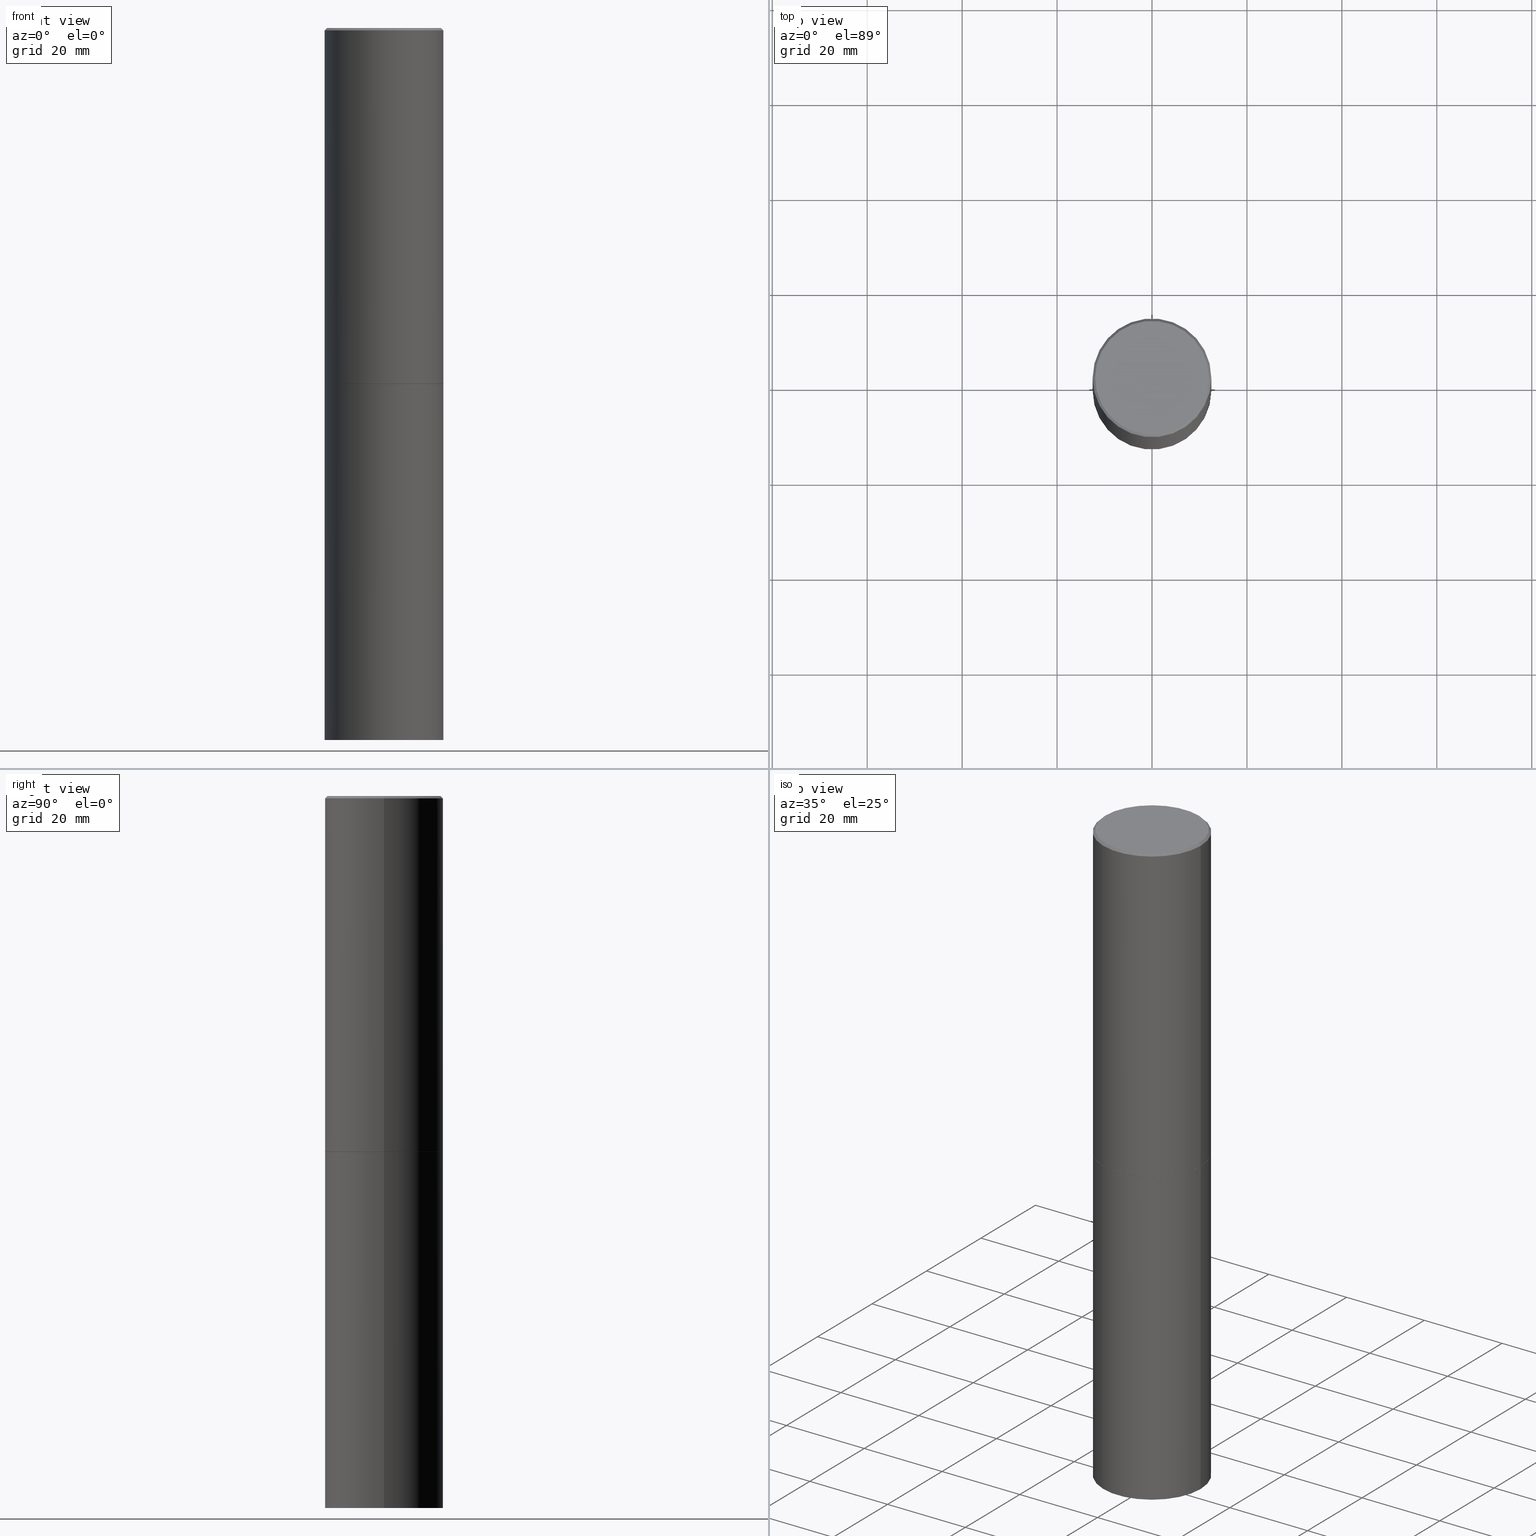
[diagram: canonical four-view strip — front | top / right | iso, engineering-drawing reading convention]
A machine part, canonical four-view strip (front | top / right | iso — engineering-drawing reading convention). The complete STEP part file that produces these views, byte-faithful:
ISO-10303-21;
HEADER;
FILE_DESCRIPTION (( 'STEP AP203' ),
    '1' );
FILE_NAME ('43195.STEP',
    '2024-02-28T04:15:30',
    ( '' ),
    ( '' ),
    'SwSTEP 2.0',
    'SolidWorks 2023',
    '' );
FILE_SCHEMA (( 'CONFIG_CONTROL_DESIGN' ));
ENDSEC;

DATA;
#1 = DIRECTION ( 'NONE',  ( 1.000000000000000000, -6.982962677686265922E-15, 4.876176775795935793E-29 ) ) ;
#2 = EDGE_CURVE ( 'NONE', #240, #190, #106, .T. ) ;
#3 = CARTESIAN_POINT ( 'NONE',  ( 7.218290275216666916E-29, -1.030580546786331359E-14, -2.951700000000000212 ) ) ;
#4 = DIRECTION ( 'NONE',  ( 1.000000000000000000, -6.982962677686264344E-15, 0.000000000000000000 ) ) ;
#5 = PRODUCT_DEFINITION_SHAPE ( 'NONE', 'NONE',  #209 ) ;
#6 = CARTESIAN_POINT ( 'NONE',  ( 7.218290275216666916E-29, -1.030580546786331359E-14, -2.951700000000000212 ) ) ;
#7 = CARTESIAN_POINT ( 'NONE',  ( -0.4911499999999999755, -6.814167848168202303E-15, -2.952700000000000546 ) ) ;
#8 =( LENGTH_UNIT ( ) NAMED_UNIT ( * ) SI_UNIT ( $, .METRE. ) );
#9 = AXIS2_PLACEMENT_3D ( 'NONE', #168, #60, #142 ) ;
#10 = PERSON_AND_ORGANIZATION ( #287, #181 ) ;
#11 = PERSON_AND_ORGANIZATION_ROLE ( 'design_owner' ) ;
#12 = ADVANCED_FACE ( 'NONE', ( #296 ), #103, .F. ) ;
#13 = ORIENTED_EDGE ( 'NONE', *, *, #343, .T. ) ;
#14 = APPLICATION_PROTOCOL_DEFINITION ( 'international standard', 'config_control_design', 1994, #152 ) ;
#15 = ORIENTED_EDGE ( 'NONE', *, *, #93, .T. ) ;
#16 = AXIS2_PLACEMENT_3D ( 'NONE', #224, #110, #1 ) ;
#17 = ORIENTED_EDGE ( 'NONE', *, *, #2, .T. ) ;
#18 = APPROVAL_ROLE ( '' ) ;
#19 = ORIENTED_EDGE ( 'NONE', *, *, #80, .F. ) ;
#20 = ORIENTED_EDGE ( 'NONE', *, *, #246, .T. ) ;
#21 = AXIS2_PLACEMENT_3D ( 'NONE', #317, #120, #4 ) ;
#22 = DIRECTION ( 'NONE',  ( 1.000000000000000000, -6.982962677686264344E-15, 0.000000000000000000 ) ) ;
#23 = DIRECTION ( 'NONE',  ( 1.000000000000000000, -6.982962677686265922E-15, 0.000000000000000000 ) ) ;
#24 = ADVANCED_FACE ( 'NONE', ( #363 ), #283, .T. ) ;
#25 = DIRECTION ( 'NONE',  ( 2.445468806185136597E-29, -3.491481338843145583E-15, -1.000000000000000000 ) ) ;
#26 = AXIS2_PLACEMENT_3D ( 'NONE', #3, #221, #81 ) ;
#27 = FACE_OUTER_BOUND ( 'NONE', #212, .T. ) ;
#28 = EDGE_CURVE ( 'NONE', #190, #135, #127, .T. ) ;
#29 = CARTESIAN_POINT ( 'NONE',  ( -0.4911499999999999755, -6.819466302516424705E-15, -2.952700000000000546 ) ) ;
#30 = ORIENTED_EDGE ( 'NONE', *, *, #206, .T. ) ;
#31 = CARTESIAN_POINT ( 'NONE',  ( 3.436665081823367957E-15, 0.4921499999999896513, -2.952700000000001435 ) ) ;
#32 = VECTOR ( 'NONE', #118, 39.37007874015748143 ) ;
#33 = CARTESIAN_POINT ( 'NONE',  ( 0.4921499999999999764, -3.436665081823295777E-15, 2.399810400207969603E-29 ) ) ;
#34 = CARTESIAN_POINT ( 'NONE',  ( 4.890937612370299433E-31, -6.982962677686328587E-17, -0.02000000000000010797 ) ) ;
#35 = CARTESIAN_POINT ( 'NONE',  ( 0.000000000000000000, 0.000000000000000000, 0.000000000000000000 ) ) ;
#36 = DIMENSIONAL_EXPONENTS ( 1.000000000000000000, 0.000000000000000000, 0.000000000000000000, 0.000000000000000000, 0.000000000000000000, 0.000000000000000000, 0.000000000000000000 ) ;
#37 = CLOSED_SHELL ( 'NONE', ( #365, #354, #321, #109, #200, #277, #64, #12 ) ) ;
#38 = VECTOR ( 'NONE', #94, 39.37007874015748143 ) ;
#39 = DIRECTION ( 'NONE',  ( 2.438088387897960049E-29, -3.491481338843145188E-15, -1.000000000000000000 ) ) ;
#40 = EDGE_CURVE ( 'NONE', #160, #46, #337, .T. ) ;
#41 = PERSON_AND_ORGANIZATION ( #287, #181 ) ;
#42 = ORIENTED_EDGE ( 'NONE', *, *, #170, .T. ) ;
#43 = APPROVAL_ROLE ( '' ) ;
#44 = ORIENTED_EDGE ( 'NONE', *, *, #80, .T. ) ;
#45 = APPROVAL_STATUS ( 'not_yet_approved' ) ;
#46 = VERTEX_POINT ( 'NONE', #193 ) ;
#47 = CONICAL_SURFACE ( 'NONE', #98, 0.4911499999999999755, 0.7853981633972775267 ) ;
#48 = CC_DESIGN_APPROVAL ( #184, ( #361 ) ) ;
#49 = APPLICATION_PROTOCOL_DEFINITION ( 'international standard', 'config_control_design', 1994, #226 ) ;
#50 = ORIENTED_EDGE ( 'NONE', *, *, #28, .T. ) ;
#51 = ORIENTED_EDGE ( 'NONE', *, *, #327, .T. ) ;
#52 = DIRECTION ( 'NONE',  ( -2.445468806185136597E-29, 3.491481338843145583E-15, 1.000000000000000000 ) ) ;
#53 = AXIS2_PLACEMENT_3D ( 'NONE', #6, #96, #179 ) ;
#54 = CARTESIAN_POINT ( 'NONE',  ( 7.220735744022852519E-29, -1.030929694920215502E-14, -2.952700000000000102 ) ) ;
#55 = DIRECTION ( 'NONE',  ( -1.000000000000000000, 6.982962677686265922E-15, 0.000000000000000000 ) ) ;
#56 = CARTESIAN_POINT ( 'NONE',  ( 7.220735744022853640E-29, -1.030929694920215659E-14, -2.952700000000000546 ) ) ;
#57 = CC_DESIGN_PERSON_AND_ORGANIZATION_ASSIGNMENT ( #350, #215, ( #361 ) ) ;
#58 = MANIFOLD_SOLID_BREP ( 'Body-Move/Copy2[2]', #37 ) ;
#59 = AXIS2_PLACEMENT_3D ( 'NONE', #56, #171, #196 ) ;
#60 = DIRECTION ( 'NONE',  ( -2.445468806185136597E-29, 3.491481338843145583E-15, 1.000000000000000000 ) ) ;
#61 = FACE_OUTER_BOUND ( 'NONE', #245, .T. ) ;
#62 = CARTESIAN_POINT ( 'NONE',  ( 1.444171603492632270E-28, -2.061894304653819197E-14, -5.905499999999999972 ) ) ;
#63 = CIRCLE ( 'NONE', #177, 0.4911499999999999755 ) ;
#64 = ADVANCED_FACE ( 'NONE', ( #227 ), #284, .F. ) ;
#65 = CYLINDRICAL_SURFACE ( 'NONE', #300, 0.4921499999999999764 ) ;
#66 = ADVANCED_BREP_SHAPE_REPRESENTATION ( '43195', ( #302, #58, #100 ), #88 ) ;
#67 = CARTESIAN_POINT ( 'NONE',  ( 0.4911499999999999755, -1.373897906834776478E-14, -2.952700000000000546 ) ) ;
#68 = EDGE_CURVE ( 'NONE', #240, #157, #77, .T. ) ;
#69 = CC_DESIGN_APPROVAL ( #290, ( #293 ) ) ;
#70 = VERTEX_POINT ( 'NONE', #306 ) ;
#71 = PERSON_AND_ORGANIZATION ( #287, #181 ) ;
#72 = CARTESIAN_POINT ( 'NONE',  ( -0.4921499999999996988, 3.366835455046430506E-15, -0.02000000000000010797 ) ) ;
#73 = PERSON_AND_ORGANIZATION ( #287, #181 ) ;
#74 = CARTESIAN_POINT ( 'NONE',  ( 3.297005828269567997E-15, 0.4721499999999996255, -1.644234401644689488E-15 ) ) ;
#75 = DIRECTION ( 'NONE',  ( 1.000000000000000000, 0.000000000000000000, 0.000000000000000000 ) ) ;
#76 = ORIENTED_EDGE ( 'NONE', *, *, #163, .T. ) ;
#77 = CIRCLE ( 'NONE', #9, 0.4721499999999996255 ) ;
#78 = ORIENTED_EDGE ( 'NONE', *, *, #68, .F. ) ;
#79 = DIRECTION ( 'NONE',  ( -1.000000000000000000, 6.982962677686265922E-15, -4.876176775795935793E-29 ) ) ;
#80 = EDGE_CURVE ( 'NONE', #362, #295, #63, .T. ) ;
#81 = DIRECTION ( 'NONE',  ( 1.000000000000000000, -6.982962677686265922E-15, 0.000000000000000000 ) ) ;
#82 = CIRCLE ( 'NONE', #116, 0.4921499999999996988 ) ;
#83 = CYLINDRICAL_SURFACE ( 'NONE', #218, 0.4921499999999998098 ) ;
#84 = CC_DESIGN_PERSON_AND_ORGANIZATION_ASSIGNMENT ( #161, #11, ( #89 ) ) ;
#85 = LINE ( 'NONE', #167, #188 ) ;
#86 = DIRECTION ( 'NONE',  ( 1.000000000000000000, -6.982962677686265922E-15, 0.000000000000000000 ) ) ;
#87 = CONICAL_SURFACE ( 'NONE', #198, 0.4921499999999996988, 0.7853981633974469467 ) ;
#88 =( GEOMETRIC_REPRESENTATION_CONTEXT ( 3 ) GLOBAL_UNCERTAINTY_ASSIGNED_CONTEXT ( ( #260 ) ) GLOBAL_UNIT_ASSIGNED_CONTEXT ( ( #272, #131, #247 ) ) REPRESENTATION_CONTEXT ( 'NONE', 'WORKASPACE' ) );
#89 = PRODUCT ( '43195', '43195', '', ( #128 ) ) ;
#90 = LINE ( 'NONE', #67, #324 ) ;
#91 = ORIENTED_EDGE ( 'NONE', *, *, #68, .T. ) ;
#92 = CARTESIAN_POINT ( 'NONE',  ( 0.4921499999999999764, -1.374247054968660936E-14, -2.951700000000000212 ) ) ;
#93 = EDGE_CURVE ( 'NONE', #157, #135, #85, .T. ) ;
#94 = DIRECTION ( 'NONE',  ( -2.445468806185136877E-29, 3.491481338843145188E-15, 1.000000000000000000 ) ) ;
#95 = APPROVAL_PERSON_ORGANIZATION ( #71, #184, #18 ) ;
#96 = DIRECTION ( 'NONE',  ( -2.445468806185136597E-29, 3.491481338843145583E-15, 1.000000000000000000 ) ) ;
#97 = CC_DESIGN_PERSON_AND_ORGANIZATION_ASSIGNMENT ( #41, #355, ( #293 ) ) ;
#98 = AXIS2_PLACEMENT_3D ( 'NONE', #234, #347, #320 ) ;
#99 = CALENDAR_DATE ( 2024, 27, 2 ) ;
#100 = AXIS2_PLACEMENT_3D ( 'NONE', #269, #219, #75 ) ;
#101 = ORIENTED_EDGE ( 'NONE', *, *, #343, .F. ) ;
#102 = CALENDAR_DATE ( 2024, 27, 2 ) ;
#103 = PLANE ( 'NONE',  #249 ) ;
#104 = EDGE_CURVE ( 'NONE', #46, #160, #134, .T. ) ;
#105 = DATE_AND_TIME ( #191, #313 ) ;
#106 = LINE ( 'NONE', #72, #149 ) ;
#107 = AXIS2_PLACEMENT_3D ( 'NONE', #143, #336, #86 ) ;
#108 = ORIENTED_EDGE ( 'NONE', *, *, #93, .F. ) ;
#109 = ADVANCED_FACE ( 'NONE', ( #27 ), #87, .T. ) ;
#110 = DIRECTION ( 'NONE',  ( -2.445468806185136597E-29, 3.491481338843145583E-15, 1.000000000000000000 ) ) ;
#111 = CARTESIAN_POINT ( 'NONE',  ( 7.220735744022853640E-29, -1.030929694920215659E-14, -2.952700000000000546 ) ) ;
#112 = CIRCLE ( 'NONE', #107, 0.4921499999999999764 ) ;
#113 = DIRECTION ( 'NONE',  ( -2.445468806185136597E-29, 3.491481338843145583E-15, 1.000000000000000000 ) ) ;
#114 = LINE ( 'NONE', #29, #271 ) ;
#115 = DIRECTION ( 'NONE',  ( 0.7071067811864267805, -2.468850131080992517E-15, 0.7071067811866682540 ) ) ;
#116 = AXIS2_PLACEMENT_3D ( 'NONE', #232, #145, #288 ) ;
#117 = EDGE_LOOP ( 'NONE', ( #101, #301 ) ) ;
#118 = DIRECTION ( 'NONE',  ( -2.445468806185136877E-29, 3.491481338843145188E-15, 1.000000000000000000 ) ) ;
#119 = PRODUCT_RELATED_PRODUCT_CATEGORY ( 'detail', '', ( #89 ) ) ;
#120 = DIRECTION ( 'NONE',  ( -2.445468806185136597E-29, 3.491481338843145583E-15, 1.000000000000000000 ) ) ;
#121 = FACE_OUTER_BOUND ( 'NONE', #214, .T. ) ;
#122 = CONICAL_SURFACE ( 'NONE', #21, 0.4911499999999999755, 0.7853981633972775267 ) ;
#123 = DIRECTION ( 'NONE',  ( -1.000000000000000000, 6.982962677686265922E-15, -4.876176775795935793E-29 ) ) ;
#124 = APPROVAL_ROLE ( '' ) ;
#125 = COORDINATED_UNIVERSAL_TIME_OFFSET ( 5, 0, .BEHIND. ) ;
#126 = ORIENTED_EDGE ( 'NONE', *, *, #246, .F. ) ;
#127 = CIRCLE ( 'NONE', #276, 0.4921499999999996988 ) ;
#128 = MECHANICAL_CONTEXT ( 'NONE', #226, 'mechanical' ) ;
#129 = ORIENTED_EDGE ( 'NONE', *, *, #316, .T. ) ;
#130 = ORIENTED_EDGE ( 'NONE', *, *, #40, .T. ) ;
#131 =( NAMED_UNIT ( * ) PLANE_ANGLE_UNIT ( ) SI_UNIT ( $, .RADIAN. ) );
#132 = EDGE_LOOP ( 'NONE', ( #270, #15, #344, #183 ) ) ;
#133 = ADVANCED_FACE ( 'NONE', ( #169 ), #253, .T. ) ;
#134 = CIRCLE ( 'NONE', #230, 0.4921499999999999764 ) ;
#135 = VERTEX_POINT ( 'NONE', #364 ) ;
#136 = DIRECTION ( 'NONE',  ( -2.445468806185136877E-29, 3.491481338843145188E-15, 1.000000000000000000 ) ) ;
#137 = DIRECTION ( 'NONE',  ( -1.000000000000000000, 6.982962677686265922E-15, -4.876176775795935793E-29 ) ) ;
#138 = CARTESIAN_POINT ( 'NONE',  ( -0.4921499999999999764, -1.196718392382684217E-14, -5.905499999999999972 ) ) ;
#139 = AXIS2_PLACEMENT_3D ( 'NONE', #172, #197, #79 ) ;
#140 = CC_DESIGN_APPROVAL ( #238, ( #209 ) ) ;
#141 = EDGE_CURVE ( 'NONE', #323, #135, #228, .T. ) ;
#142 = DIRECTION ( 'NONE',  ( 1.000000000000000000, -6.982962677686265922E-15, 4.876006802227162976E-29 ) ) ;
#143 = CARTESIAN_POINT ( 'NONE',  ( 1.444171603492632270E-28, -2.061894304653819197E-14, -5.905499999999999972 ) ) ;
#144 = EDGE_CURVE ( 'NONE', #362, #70, #114, .T. ) ;
#145 = DIRECTION ( 'NONE',  ( -2.445468806185136597E-29, 3.491481338843145583E-15, 1.000000000000000000 ) ) ;
#146 = DIRECTION ( 'NONE',  ( -2.445468806185136597E-29, 3.491481338843145583E-15, 1.000000000000000000 ) ) ;
#147 = DIRECTION ( 'NONE',  ( -2.445468806185136597E-29, 3.491481338843145583E-15, 1.000000000000000000 ) ) ;
#148 = CARTESIAN_POINT ( 'NONE',  ( 0.4911499999999999755, -1.373897906834776478E-14, -2.952700000000000546 ) ) ;
#149 = VECTOR ( 'NONE', #185, 39.37007874015748143 ) ;
#150 = CC_DESIGN_SECURITY_CLASSIFICATION ( #361, ( #293 ) ) ;
#151 = DIRECTION ( 'NONE',  ( -2.445468806185136597E-29, 3.491481338843145583E-15, 1.000000000000000000 ) ) ;
#152 = APPLICATION_CONTEXT ( 'configuration controlled 3d designs of mechanical parts and assemblies' ) ;
#153 = DATE_AND_TIME ( #102, #189 ) ;
#154 = VERTEX_POINT ( 'NONE', #138 ) ;
#155 = CALENDAR_DATE ( 2024, 27, 2 ) ;
#156 = EDGE_CURVE ( 'NONE', #154, #329, #112, .T. ) ;
#157 = VERTEX_POINT ( 'NONE', #280 ) ;
#158 = APPROVAL_DATE_TIME ( #351, #184 ) ;
#159 = APPROVAL_PERSON_ORGANIZATION ( #73, #238, #43 ) ;
#160 = VERTEX_POINT ( 'NONE', #257 ) ;
#161 = PERSON_AND_ORGANIZATION ( #287, #181 ) ;
#162 = EDGE_LOOP ( 'NONE', ( #358, #202, #30, #243 ) ) ;
#163 = EDGE_CURVE ( 'NONE', #295, #362, #332, .T. ) ;
#164 = PERSON_AND_ORGANIZATION ( #287, #181 ) ;
#165 = EDGE_LOOP ( 'NONE', ( #91, #299 ) ) ;
#166 = CIRCLE ( 'NONE', #199, 0.4921499999999999764 ) ;
#167 = CARTESIAN_POINT ( 'NONE',  ( 0.4921499999999996988, -3.446223716380120377E-15, -0.02000000000000010797 ) ) ;
#168 = CARTESIAN_POINT ( 'NONE',  ( -2.087702828670439639E-46, 2.980686340760894400E-32, 8.537024980200822558E-18 ) ) ;
#169 = FACE_OUTER_BOUND ( 'NONE', #162, .T. ) ;
#170 = EDGE_CURVE ( 'NONE', #70, #323, #348, .T. ) ;
#171 = DIRECTION ( 'NONE',  ( -2.438088387897960049E-29, 3.491481338843145188E-15, 1.000000000000000000 ) ) ;
#172 = CARTESIAN_POINT ( 'NONE',  ( 3.436665081823440533E-15, 0.4921499999999793262, -5.905500000000001748 ) ) ;
#173 = CC_DESIGN_DATE_AND_TIME_ASSIGNMENT ( #328, #322, ( #361 ) ) ;
#174 = CARTESIAN_POINT ( 'NONE',  ( -0.4721499999999996255, 3.331920641657999252E-15, 8.537024980177643606E-18 ) ) ;
#175 = DESIGN_CONTEXT ( 'detailed design', #152, 'design' ) ;
#176 = CARTESIAN_POINT ( 'NONE',  ( -0.4921499999999998098, 3.496936074043331714E-15, -2.420853904668950949E-29 ) ) ;
#177 = AXIS2_PLACEMENT_3D ( 'NONE', #256, #52, #22 ) ;
#178 = DIRECTION ( 'NONE',  ( -2.445468806185136597E-29, 3.491481338843145583E-15, 1.000000000000000000 ) ) ;
#179 = DIRECTION ( 'NONE',  ( 1.000000000000000000, -6.982962677686265922E-15, 0.000000000000000000 ) ) ;
#180 = LINE ( 'NONE', #345, #292 ) ;
#181 = ORGANIZATION ( 'UNSPECIFIED', 'UNSPECIFIED', '' ) ;
#182 = APPROVAL_STATUS ( 'not_yet_approved' ) ;
#183 = ORIENTED_EDGE ( 'NONE', *, *, #2, .F. ) ;
#184 = APPROVAL ( #45, 'UNSPECIFIED' ) ;
#185 = DIRECTION ( 'NONE',  ( -0.7071067811865465735, 2.468850131082246805E-15, -0.7071067811865484609 ) ) ;
#186 = COORDINATED_UNIVERSAL_TIME_OFFSET ( 5, 0, .BEHIND. ) ;
#187 = DIRECTION ( 'NONE',  ( 2.438088387897960049E-29, -3.491481338843145188E-15, -1.000000000000000000 ) ) ;
#188 = VECTOR ( 'NONE', #309, 39.37007874015748143 ) ;
#189 = LOCAL_TIME ( 23, 15, 30.00000000000000000, #325 ) ;
#190 = VERTEX_POINT ( 'NONE', #335 ) ;
#191 = CALENDAR_DATE ( 2024, 27, 2 ) ;
#192 = ORIENTED_EDGE ( 'NONE', *, *, #28, .F. ) ;
#193 = CARTESIAN_POINT ( 'NONE',  ( -0.4921499999999999764, -1.196718392382684217E-14, -2.952700000000000102 ) ) ;
#194 = CARTESIAN_POINT ( 'NONE',  ( 0.4921499999999998098, -3.436665081823294593E-15, 2.399810400207968762E-29 ) ) ;
#195 = DIRECTION ( 'NONE',  ( -2.445468806185136597E-29, 3.491481338843145583E-15, 1.000000000000000000 ) ) ;
#196 = DIRECTION ( 'NONE',  ( 1.000000000000000000, -6.982962677686265922E-15, 4.876176775795935793E-29 ) ) ;
#197 = DIRECTION ( 'NONE',  ( 2.438088387897960049E-29, -3.491481338843145188E-15, -1.000000000000000000 ) ) ;
#198 = AXIS2_PLACEMENT_3D ( 'NONE', #279, #25, #55 ) ;
#199 = AXIS2_PLACEMENT_3D ( 'NONE', #62, #146, #291 ) ;
#200 = ADVANCED_FACE ( 'NONE', ( #338 ), #83, .T. ) ;
#201 = CYLINDRICAL_SURFACE ( 'NONE', #210, 0.4921499999999998098 ) ;
#202 = ORIENTED_EDGE ( 'NONE', *, *, #156, .T. ) ;
#203 = DIRECTION ( 'NONE',  ( 1.000000000000000000, -6.982962677686265922E-15, 4.876006802227162976E-29 ) ) ;
#204 = LINE ( 'NONE', #33, #32 ) ;
#205 = APPROVAL_PERSON_ORGANIZATION ( #164, #290, #124 ) ;
#206 = EDGE_CURVE ( 'NONE', #329, #160, #204, .T. ) ;
#207 = LINE ( 'NONE', #176, #38 ) ;
#208 = PERSON_AND_ORGANIZATION_ROLE ( 'creator' ) ;
#209 = PRODUCT_DEFINITION ( 'UNKNOWN', '', #293, #175 ) ;
#210 = AXIS2_PLACEMENT_3D ( 'NONE', #261, #147, #263 ) ;
#211 = COORDINATED_UNIVERSAL_TIME_OFFSET ( 5, 0, .BEHIND. ) ;
#212 = EDGE_LOOP ( 'NONE', ( #108, #78, #17, #50 ) ) ;
#213 = PERSON_AND_ORGANIZATION_ROLE ( 'design_supplier' ) ;
#214 = EDGE_LOOP ( 'NONE', ( #76, #304, #126, #274 ) ) ;
#215 = PERSON_AND_ORGANIZATION_ROLE ( 'classification_officer' ) ;
#216 = CC_DESIGN_PERSON_AND_ORGANIZATION_ASSIGNMENT ( #10, #208, ( #209 ) ) ;
#217 = ORIENTED_EDGE ( 'NONE', *, *, #144, .F. ) ;
#218 = AXIS2_PLACEMENT_3D ( 'NONE', #310, #366, #236 ) ;
#219 = DIRECTION ( 'NONE',  ( 0.000000000000000000, 0.000000000000000000, 1.000000000000000000 ) ) ;
#220 = EDGE_LOOP ( 'NONE', ( #13, #129, #275, #258 ) ) ;
#221 = DIRECTION ( 'NONE',  ( -2.445468806185136597E-29, 3.491481338843145583E-15, 1.000000000000000000 ) ) ;
#222 = DIRECTION ( 'NONE',  ( 1.000000000000000000, -6.982962677686265922E-15, 0.000000000000000000 ) ) ;
#223 = VECTOR ( 'NONE', #136, 39.37007874015748143 ) ;
#224 = CARTESIAN_POINT ( 'NONE',  ( 0.000000000000000000, 0.000000000000000000, 0.000000000000000000 ) ) ;
#225 = LOCAL_TIME ( 23, 15, 30.00000000000000000, #303 ) ;
#226 = APPLICATION_CONTEXT ( 'configuration controlled 3d designs of mechanical parts and assemblies' ) ;
#227 = FACE_OUTER_BOUND ( 'NONE', #331, .T. ) ;
#228 = LINE ( 'NONE', #194, #223 ) ;
#229 = DIRECTION ( 'NONE',  ( 2.445468806185136597E-29, -3.491481338843145583E-15, -1.000000000000000000 ) ) ;
#230 = AXIS2_PLACEMENT_3D ( 'NONE', #54, #312, #222 ) ;
#231 = CARTESIAN_POINT ( 'NONE',  ( -2.087702828670439639E-46, 2.980686340760894400E-32, 8.537024980200822558E-18 ) ) ;
#232 = CARTESIAN_POINT ( 'NONE',  ( 4.890937612370299433E-31, -6.982962677686328587E-17, -0.02000000000000010797 ) ) ;
#233 = ADVANCED_FACE ( 'NONE', ( #259 ), #349, .F. ) ;
#234 = CARTESIAN_POINT ( 'NONE',  ( 7.220735744022853640E-29, -1.030929694920215659E-14, -2.952700000000000546 ) ) ;
#235 = CIRCLE ( 'NONE', #241, 0.4721499999999996255 ) ;
#236 = DIRECTION ( 'NONE',  ( 1.000000000000000000, -6.982962677686265922E-15, 4.876176775795935793E-29 ) ) ;
#237 = APPROVAL_DATE_TIME ( #153, #290 ) ;
#238 = APPROVAL ( #182, 'UNSPECIFIED' ) ;
#239 = CALENDAR_DATE ( 2024, 27, 2 ) ;
#240 = VERTEX_POINT ( 'NONE', #174 ) ;
#241 = AXIS2_PLACEMENT_3D ( 'NONE', #231, #178, #203 ) ;
#242 = APPROVAL_STATUS ( 'not_yet_approved' ) ;
#243 = ORIENTED_EDGE ( 'NONE', *, *, #104, .F. ) ;
#244 = DATE_TIME_ROLE ( 'creation_date' ) ;
#245 = EDGE_LOOP ( 'NONE', ( #20, #356, #285, #273 ) ) ;
#246 = EDGE_CURVE ( 'NONE', #323, #70, #254, .T. ) ;
#247 =( NAMED_UNIT ( * ) SI_UNIT ( $, .STERADIAN. ) SOLID_ANGLE_UNIT ( ) );
#248 = EDGE_LOOP ( 'NONE', ( #359, #42, #353, #192 ) ) ;
#249 = AXIS2_PLACEMENT_3D ( 'NONE', #74, #187, #137 ) ;
#250 = ORIENTED_EDGE ( 'NONE', *, *, #170, .F. ) ;
#251 = DIRECTION ( 'NONE',  ( -0.7071067811864267805, 7.493145998869918709E-15, 0.7071067811866682540 ) ) ;
#252 = CC_DESIGN_PERSON_AND_ORGANIZATION_ASSIGNMENT ( #267, #213, ( #293 ) ) ;
#253 = CYLINDRICAL_SURFACE ( 'NONE', #16, 0.4921499999999999764 ) ;
#254 = CIRCLE ( 'NONE', #53, 0.4921499999999999764 ) ;
#255 = DIRECTION ( 'NONE',  ( 1.000000000000000000, -6.982962677686264344E-15, 0.000000000000000000 ) ) ;
#256 = CARTESIAN_POINT ( 'NONE',  ( 7.220735744022853640E-29, -1.030929694920215659E-14, -2.952700000000000546 ) ) ;
#257 = CARTESIAN_POINT ( 'NONE',  ( 0.4921499999999999764, -1.374596203102545079E-14, -2.952700000000000102 ) ) ;
#258 = ORIENTED_EDGE ( 'NONE', *, *, #206, .F. ) ;
#259 = FACE_OUTER_BOUND ( 'NONE', #334, .T. ) ;
#260 = UNCERTAINTY_MEASURE_WITH_UNIT (LENGTH_MEASURE( 1.000000000000000082E-05 ), #272, 'distance_accuracy_value', 'NONE');
#261 = CARTESIAN_POINT ( 'NONE',  ( 0.000000000000000000, 0.000000000000000000, 0.000000000000000000 ) ) ;
#262 = CC_DESIGN_DATE_AND_TIME_ASSIGNMENT ( #297, #244, ( #209 ) ) ;
#263 = DIRECTION ( 'NONE',  ( 1.000000000000000000, -6.982962677686265922E-15, 4.876176775795935793E-29 ) ) ;
#264 = LENGTH_MEASURE_WITH_UNIT ( LENGTH_MEASURE( 0.02539999999999999897 ), #8 );
#265 = EDGE_CURVE ( 'NONE', #157, #240, #235, .T. ) ;
#266 = FACE_OUTER_BOUND ( 'NONE', #132, .T. ) ;
#267 = PERSON_AND_ORGANIZATION ( #287, #181 ) ;
#268 = ORIENTED_EDGE ( 'NONE', *, *, #163, .F. ) ;
#269 = CARTESIAN_POINT ( 'NONE',  ( 0.000000000000000000, 0.000000000000000000, 0.000000000000000000 ) ) ;
#270 = ORIENTED_EDGE ( 'NONE', *, *, #265, .F. ) ;
#271 = VECTOR ( 'NONE', #251, 39.37007874015748143 ) ;
#272 =( CONVERSION_BASED_UNIT ( 'INCH', #264 ) LENGTH_UNIT ( ) NAMED_UNIT ( #36 ) );
#273 = ORIENTED_EDGE ( 'NONE', *, *, #141, .F. ) ;
#274 = ORIENTED_EDGE ( 'NONE', *, *, #327, .F. ) ;
#275 = ORIENTED_EDGE ( 'NONE', *, *, #40, .F. ) ;
#276 = AXIS2_PLACEMENT_3D ( 'NONE', #311, #195, #339 ) ;
#277 = ADVANCED_FACE ( 'NONE', ( #286 ), #122, .T. ) ;
#278 = CARTESIAN_POINT ( 'NONE',  ( 7.220735744022852519E-29, -1.030929694920215502E-14, -2.952700000000000102 ) ) ;
#279 = CARTESIAN_POINT ( 'NONE',  ( 4.890937612370299433E-31, -6.982962677686328587E-17, -0.02000000000000010797 ) ) ;
#280 = CARTESIAN_POINT ( 'NONE',  ( 0.4721499999999996255, -3.342703923013973396E-15, 8.537024980224040028E-18 ) ) ;
#281 = ADVANCED_FACE ( 'NONE', ( #342 ), #65, .T. ) ;
#282 = CONICAL_SURFACE ( 'NONE', #360, 0.4921499999999996988, 0.7853981633974469467 ) ;
#283 = PLANE ( 'NONE',  #139 ) ;
#284 = PLANE ( 'NONE',  #59 ) ;
#285 = ORIENTED_EDGE ( 'NONE', *, *, #298, .F. ) ;
#286 = FACE_OUTER_BOUND ( 'NONE', #315, .T. ) ;
#287 = PERSON ( 'UNSPECIFIED', 'UNSPECIFIED', 'UNSPECIFIED', ('UNSPECIFIED'), ('UNSPECIFIED'), ('UNSPECIFIED') ) ;
#288 = DIRECTION ( 'NONE',  ( 1.000000000000000000, -6.982962677686265922E-15, 0.000000000000000000 ) ) ;
#289 = DIRECTION ( 'NONE',  ( -2.445468806185136877E-29, 3.491481338843145188E-15, 1.000000000000000000 ) ) ;
#290 = APPROVAL ( #242, 'UNSPECIFIED' ) ;
#291 = DIRECTION ( 'NONE',  ( 1.000000000000000000, -6.982962677686265922E-15, 0.000000000000000000 ) ) ;
#292 = VECTOR ( 'NONE', #289, 39.37007874015748143 ) ;
#293 = PRODUCT_DEFINITION_FORMATION_WITH_SPECIFIED_SOURCE ( 'ANY', '', #89, .NOT_KNOWN. ) ;
#294 = APPROVAL_DATE_TIME ( #105, #238 ) ;
#295 = VERTEX_POINT ( 'NONE', #148 ) ;
#296 = FACE_OUTER_BOUND ( 'NONE', #165, .T. ) ;
#297 = DATE_AND_TIME ( #99, #225 ) ;
#298 = EDGE_CURVE ( 'NONE', #135, #190, #82, .T. ) ;
#299 = ORIENTED_EDGE ( 'NONE', *, *, #265, .T. ) ;
#300 = AXIS2_PLACEMENT_3D ( 'NONE', #35, #151, #318 ) ;
#301 = ORIENTED_EDGE ( 'NONE', *, *, #156, .F. ) ;
#302 = MANIFOLD_SOLID_BREP ( 'Body-Move/Copy2[1]', #352 ) ;
#303 = COORDINATED_UNIVERSAL_TIME_OFFSET ( 5, 0, .BEHIND. ) ;
#304 = ORIENTED_EDGE ( 'NONE', *, *, #144, .T. ) ;
#305 = EDGE_CURVE ( 'NONE', #70, #190, #207, .T. ) ;
#306 = CARTESIAN_POINT ( 'NONE',  ( -0.4921499999999999764, -1.690881473276754954E-15, -2.951700000000000212 ) ) ;
#307 = AXIS2_PLACEMENT_3D ( 'NONE', #31, #39, #123 ) ;
#308 = LOCAL_TIME ( 23, 15, 30.00000000000000000, #211 ) ;
#309 = DIRECTION ( 'NONE',  ( 0.7071067811865465735, -7.319954787623252890E-15, -0.7071067811865484609 ) ) ;
#310 = CARTESIAN_POINT ( 'NONE',  ( 0.000000000000000000, 0.000000000000000000, 0.000000000000000000 ) ) ;
#311 = CARTESIAN_POINT ( 'NONE',  ( 4.890937612370299433E-31, -6.982962677686328587E-17, -0.02000000000000010797 ) ) ;
#312 = DIRECTION ( 'NONE',  ( -2.445468806185136597E-29, 3.491481338843145583E-15, 1.000000000000000000 ) ) ;
#313 = LOCAL_TIME ( 23, 15, 30.00000000000000000, #186 ) ;
#314 = DIRECTION ( 'NONE',  ( -1.000000000000000000, 6.982962677686265922E-15, 0.000000000000000000 ) ) ;
#315 = EDGE_LOOP ( 'NONE', ( #217, #44, #51, #250 ) ) ;
#316 = EDGE_CURVE ( 'NONE', #154, #46, #180, .T. ) ;
#317 = CARTESIAN_POINT ( 'NONE',  ( 7.220735744022853640E-29, -1.030929694920215659E-14, -2.952700000000000546 ) ) ;
#318 = DIRECTION ( 'NONE',  ( 1.000000000000000000, -6.982962677686265922E-15, 4.876176775795935793E-29 ) ) ;
#319 = AXIS2_PLACEMENT_3D ( 'NONE', #111, #113, #255 ) ;
#320 = DIRECTION ( 'NONE',  ( 1.000000000000000000, -6.982962677686264344E-15, 0.000000000000000000 ) ) ;
#321 = ADVANCED_FACE ( 'NONE', ( #266 ), #282, .T. ) ;
#322 = DATE_TIME_ROLE ( 'classification_date' ) ;
#323 = VERTEX_POINT ( 'NONE', #92 ) ;
#324 = VECTOR ( 'NONE', #115, 39.37007874015748143 ) ;
#325 = COORDINATED_UNIVERSAL_TIME_OFFSET ( 5, 0, .BEHIND. ) ;
#326 = ORIENTED_EDGE ( 'NONE', *, *, #104, .T. ) ;
#327 = EDGE_CURVE ( 'NONE', #295, #323, #90, .T. ) ;
#328 = DATE_AND_TIME ( #155, #308 ) ;
#329 = VERTEX_POINT ( 'NONE', #346 ) ;
#330 = SHAPE_DEFINITION_REPRESENTATION ( #5, #66 ) ;
#331 = EDGE_LOOP ( 'NONE', ( #268, #19 ) ) ;
#332 = CIRCLE ( 'NONE', #319, 0.4911499999999999755 ) ;
#333 = LOCAL_TIME ( 23, 15, 30.00000000000000000, #125 ) ;
#334 = EDGE_LOOP ( 'NONE', ( #130, #326 ) ) ;
#335 = CARTESIAN_POINT ( 'NONE',  ( -0.4921499999999996988, 3.366835455046430506E-15, -0.02000000000000010797 ) ) ;
#336 = DIRECTION ( 'NONE',  ( -2.445468806185136597E-29, 3.491481338843145583E-15, 1.000000000000000000 ) ) ;
#337 = CIRCLE ( 'NONE', #341, 0.4921499999999999764 ) ;
#338 = FACE_OUTER_BOUND ( 'NONE', #248, .T. ) ;
#339 = DIRECTION ( 'NONE',  ( 1.000000000000000000, -6.982962677686265922E-15, 0.000000000000000000 ) ) ;
#340 = DIRECTION ( 'NONE',  ( -2.445468806185136597E-29, 3.491481338843145583E-15, 1.000000000000000000 ) ) ;
#341 = AXIS2_PLACEMENT_3D ( 'NONE', #278, #340, #23 ) ;
#342 = FACE_OUTER_BOUND ( 'NONE', #220, .T. ) ;
#343 = EDGE_CURVE ( 'NONE', #329, #154, #166, .T. ) ;
#344 = ORIENTED_EDGE ( 'NONE', *, *, #298, .T. ) ;
#345 = CARTESIAN_POINT ( 'NONE',  ( -0.4921499999999999764, 3.496936074043332897E-15, -2.420853904668951509E-29 ) ) ;
#346 = CARTESIAN_POINT ( 'NONE',  ( 0.4921499999999999764, -2.405560812836148932E-14, -5.905499999999999972 ) ) ;
#347 = DIRECTION ( 'NONE',  ( -2.445468806185136597E-29, 3.491481338843145583E-15, 1.000000000000000000 ) ) ;
#348 = CIRCLE ( 'NONE', #26, 0.4921499999999999764 ) ;
#349 = PLANE ( 'NONE',  #307 ) ;
#350 = PERSON_AND_ORGANIZATION ( #287, #181 ) ;
#351 = DATE_AND_TIME ( #239, #333 ) ;
#352 = CLOSED_SHELL ( 'NONE', ( #281, #24, #233, #133 ) ) ;
#353 = ORIENTED_EDGE ( 'NONE', *, *, #141, .T. ) ;
#354 = ADVANCED_FACE ( 'NONE', ( #61 ), #201, .T. ) ;
#355 = PERSON_AND_ORGANIZATION_ROLE ( 'creator' ) ;
#356 = ORIENTED_EDGE ( 'NONE', *, *, #305, .T. ) ;
#357 = SECURITY_CLASSIFICATION_LEVEL ( 'unclassified' ) ;
#358 = ORIENTED_EDGE ( 'NONE', *, *, #316, .F. ) ;
#359 = ORIENTED_EDGE ( 'NONE', *, *, #305, .F. ) ;
#360 = AXIS2_PLACEMENT_3D ( 'NONE', #34, #229, #314 ) ;
#361 = SECURITY_CLASSIFICATION ( '', '', #357 ) ;
#362 = VERTEX_POINT ( 'NONE', #7 ) ;
#363 = FACE_OUTER_BOUND ( 'NONE', #117, .T. ) ;
#364 = CARTESIAN_POINT ( 'NONE',  ( 0.4921499999999996988, -3.446223716380120377E-15, -0.02000000000000010797 ) ) ;
#365 = ADVANCED_FACE ( 'NONE', ( #121 ), #47, .T. ) ;
#366 = DIRECTION ( 'NONE',  ( -2.445468806185136597E-29, 3.491481338843145583E-15, 1.000000000000000000 ) ) ;
ENDSEC;
END-ISO-10303-21;
